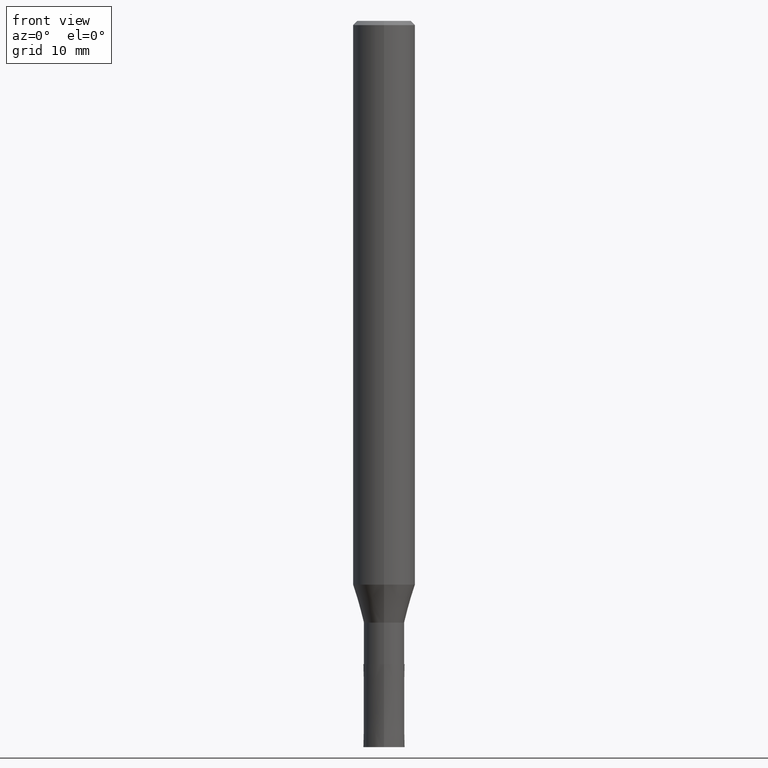
[diagram: clean part render]
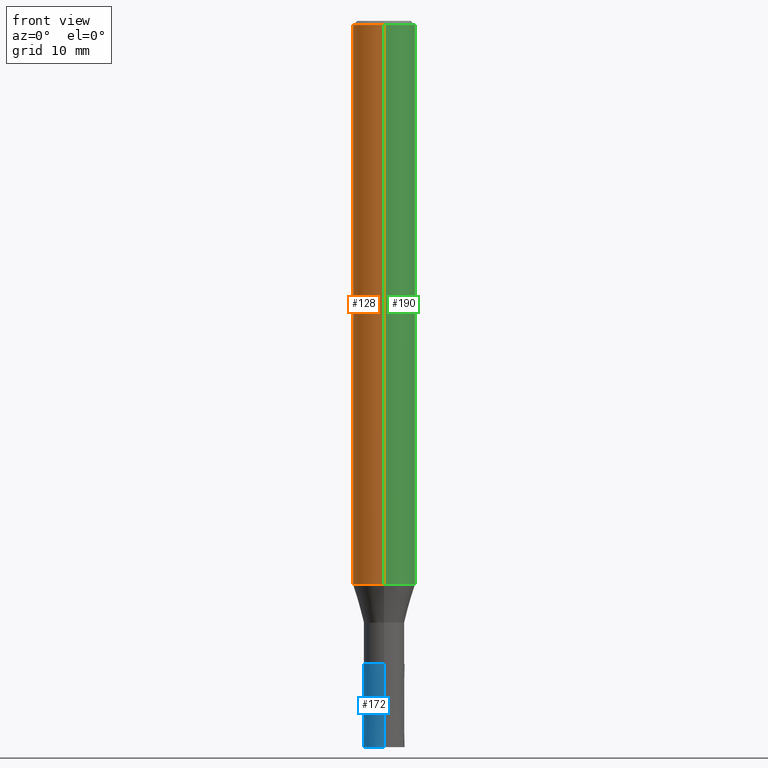
[diagram: same view with three faces highlighted in distinct colors, each labeled with its STEP entity id]
A machine part, front view with three faces highlighted in distinct colors.
Their STEP definitions:

[orange] entity #128 — the highlighted cylindrical surface (edge-blend (fillet) strip) has radius 3 mm, axis along (-0, -0, 1).
#92=VERTEX_POINT('',#229);
#98=EDGE_CURVE('',#142,#146,#235,.T.);
#112=EDGE_CURVE('',#92,#146,#252,.T.);
#128=ADVANCED_FACE('',(#271),#272,.T.);
#138=VERTEX_POINT('',#283);
#142=VERTEX_POINT('',#287);
#146=VERTEX_POINT('',#291);
#164=EDGE_CURVE('',#92,#138,#311,.T.);
#180=EDGE_CURVE('',#138,#142,#328,.T.);
#229=CARTESIAN_POINT('',(3.67381906146713E-016,-3.0,-54.338));
#235=LINE('',#382,#383);
#252=CIRCLE('',#404,3.0);
#271=FACE_OUTER_BOUND('',#428,.T.);
#272=CYLINDRICAL_SURFACE('',#429,3.0);
#283=CARTESIAN_POINT('',(3.67381906146713E-016,-3.0,-0.399999999999999));
#287=CARTESIAN_POINT('',(0.0,3.0,-0.399999999999999));
#291=CARTESIAN_POINT('',(0.0,3.0,-54.338));
#311=LINE('',#478,#479);
#328=CIRCLE('',#503,3.0);
#382=CARTESIAN_POINT('',(-3.67381906146713E-016,3.0,-27.369));
#383=VECTOR('',#545,1.0);
#404=AXIS2_PLACEMENT_3D('',#564,#565,#566);
#428=EDGE_LOOP('',(#598,#599,#600,#601));
#429=AXIS2_PLACEMENT_3D('',#602,#603,#604);
#478=CARTESIAN_POINT('',(3.67381906146713E-016,-3.0,-27.369));
#479=VECTOR('',#638,1.0);
#503=AXIS2_PLACEMENT_3D('',#655,#656,#657);
#545=DIRECTION('',(0.0,0.0,-1.0));
#564=CARTESIAN_POINT('',(0.0,0.0,-54.338));
#565=DIRECTION('',(0.0,0.0,-1.0));
#566=DIRECTION('',(0.0,1.0,0.0));
#598=ORIENTED_EDGE('',*,*,#98,.T.);
#599=ORIENTED_EDGE('',*,*,#112,.F.);
#600=ORIENTED_EDGE('',*,*,#164,.T.);
#601=ORIENTED_EDGE('',*,*,#180,.T.);
#602=CARTESIAN_POINT('',(0.0,0.0,-27.369));
#603=DIRECTION('',(-0.0,-0.0,1.0));
#604=DIRECTION('',(0.0,1.0,0.0));
#638=DIRECTION('',(-0.0,-0.0,1.0));
#655=CARTESIAN_POINT('',(0.0,0.0,-0.399999999999999));
#656=DIRECTION('',(0.0,0.0,-1.0));
#657=DIRECTION('',(0.0,1.0,0.0));

[blue] entity #172 — the highlighted conical surface has half-angle 0.001 deg.
#96=EDGE_CURVE('',#182,#110,#233,.T.);
#100=EDGE_CURVE('',#194,#168,#237,.T.);
#104=EDGE_CURVE('',#168,#110,#241,.T.);
#110=VERTEX_POINT('',#250);
#168=VERTEX_POINT('',#315);
#172=ADVANCED_FACE('',(#319),#320,.T.);
#176=EDGE_CURVE('',#182,#194,#324,.T.);
#182=VERTEX_POINT('',#330);
#194=VERTEX_POINT('',#345);
#233=CIRCLE('',#379,2.0);
#237=CIRCLE('',#386,1.9999);
#241=LINE('',#391,#392);
#250=CARTESIAN_POINT('',(0.0,2.0,-70.0));
#315=CARTESIAN_POINT('',(0.0,1.9999,-62.0));
#319=FACE_OUTER_BOUND('',#489,.T.);
#320=CONICAL_SURFACE('',#490,1.99995,1.24999999993476E-005);
#324=LINE('',#496,#497);
#330=CARTESIAN_POINT('',(2.44921270764475E-016,-2.0,-70.0));
#345=CARTESIAN_POINT('',(2.44909024700937E-016,-1.9999,-62.0));
#379=AXIS2_PLACEMENT_3D('',#542,#543,#544);
#386=AXIS2_PLACEMENT_3D('',#546,#547,#548);
#391=CARTESIAN_POINT('',(-2.44915147732706E-016,1.99995,-66.0));
#392=VECTOR('',#549,1.0);
#489=EDGE_LOOP('',(#641,#642,#643,#644));
#490=AXIS2_PLACEMENT_3D('',#645,#646,#647);
#496=CARTESIAN_POINT('',(2.44915147732706E-016,-1.99995,-66.0));
#497=VECTOR('',#651,1.0);
#542=CARTESIAN_POINT('',(0.0,0.0,-70.0));
#543=DIRECTION('',(0.0,0.0,-1.0));
#544=DIRECTION('',(0.0,1.0,0.0));
#546=CARTESIAN_POINT('',(0.0,0.0,-62.0));
#547=DIRECTION('',(0.0,0.0,-1.0));
#548=DIRECTION('',(0.0,1.0,0.0));
#549=DIRECTION('',(-1.53075794215821E-021,1.24999999990221E-005,-0.999999999921875));
#641=ORIENTED_EDGE('',*,*,#104,.T.);
#642=ORIENTED_EDGE('',*,*,#96,.F.);
#643=ORIENTED_EDGE('',*,*,#176,.T.);
#644=ORIENTED_EDGE('',*,*,#100,.T.);
#645=CARTESIAN_POINT('',(0.0,0.0,-66.0));
#646=DIRECTION('',(0.0,-0.0,-1.0));
#647=DIRECTION('',(0.0,1.0,0.0));
#651=DIRECTION('',(-1.53075794215821E-021,1.24999999990221E-005,0.999999999921875));

[green] entity #190 — the highlighted cylindrical surface (edge-blend (fillet) strip) has radius 3 mm, axis along (-0, -0, 1).
#92=VERTEX_POINT('',#229);
#98=EDGE_CURVE('',#142,#146,#235,.T.);
#138=VERTEX_POINT('',#283);
#142=VERTEX_POINT('',#287);
#146=VERTEX_POINT('',#291);
#164=EDGE_CURVE('',#92,#138,#311,.T.);
#186=EDGE_CURVE('',#142,#138,#334,.T.);
#190=ADVANCED_FACE('',(#339),#340,.T.);
#202=EDGE_CURVE('',#146,#92,#354,.T.);
#229=CARTESIAN_POINT('',(3.67381906146713E-016,-3.0,-54.338));
#235=LINE('',#382,#383);
#283=CARTESIAN_POINT('',(3.67381906146713E-016,-3.0,-0.399999999999999));
#287=CARTESIAN_POINT('',(0.0,3.0,-0.399999999999999));
#291=CARTESIAN_POINT('',(0.0,3.0,-54.338));
#311=LINE('',#478,#479);
#334=CIRCLE('',#510,3.0);
#339=FACE_OUTER_BOUND('',#515,.T.);
#340=CYLINDRICAL_SURFACE('',#516,3.0);
#354=CIRCLE('',#533,3.0);
#382=CARTESIAN_POINT('',(-3.67381906146713E-016,3.0,-27.369));
#383=VECTOR('',#545,1.0);
#478=CARTESIAN_POINT('',(3.67381906146713E-016,-3.0,-27.369));
#479=VECTOR('',#638,1.0);
#510=AXIS2_PLACEMENT_3D('',#658,#659,#660);
#515=EDGE_LOOP('',(#670,#671,#672,#673));
#516=AXIS2_PLACEMENT_3D('',#674,#675,#676);
#533=AXIS2_PLACEMENT_3D('',#699,#700,#701);
#545=DIRECTION('',(0.0,0.0,-1.0));
#638=DIRECTION('',(-0.0,-0.0,1.0));
#658=CARTESIAN_POINT('',(0.0,0.0,-0.399999999999999));
#659=DIRECTION('',(0.0,0.0,-1.0));
#660=DIRECTION('',(0.0,1.0,0.0));
#670=ORIENTED_EDGE('',*,*,#98,.F.);
#671=ORIENTED_EDGE('',*,*,#186,.T.);
#672=ORIENTED_EDGE('',*,*,#164,.F.);
#673=ORIENTED_EDGE('',*,*,#202,.F.);
#674=CARTESIAN_POINT('',(0.0,0.0,-27.369));
#675=DIRECTION('',(-0.0,-0.0,1.0));
#676=DIRECTION('',(0.0,1.0,0.0));
#699=CARTESIAN_POINT('',(0.0,0.0,-54.338));
#700=DIRECTION('',(0.0,0.0,-1.0));
#701=DIRECTION('',(0.0,1.0,0.0));